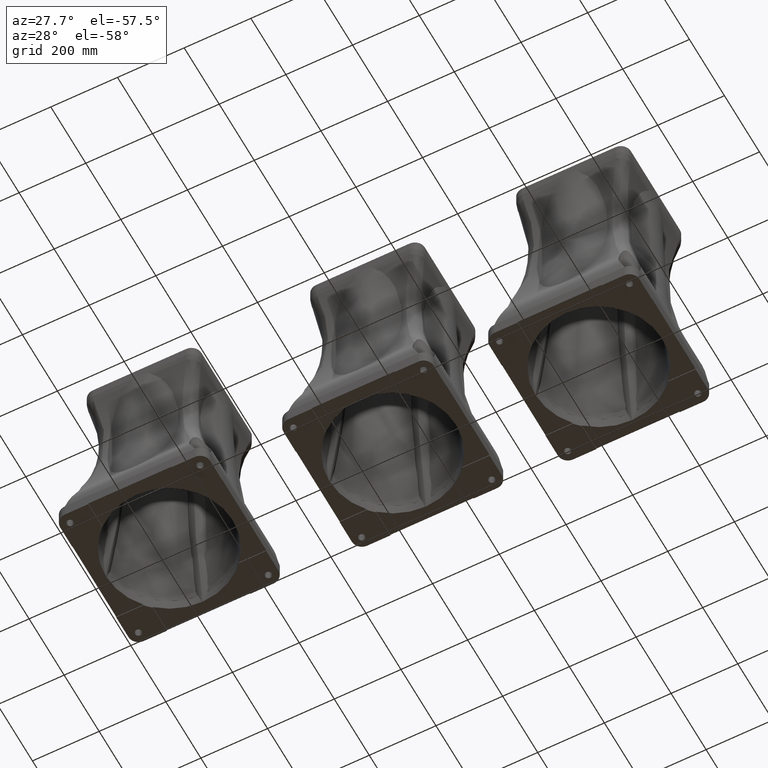
[diagram: clean part render]
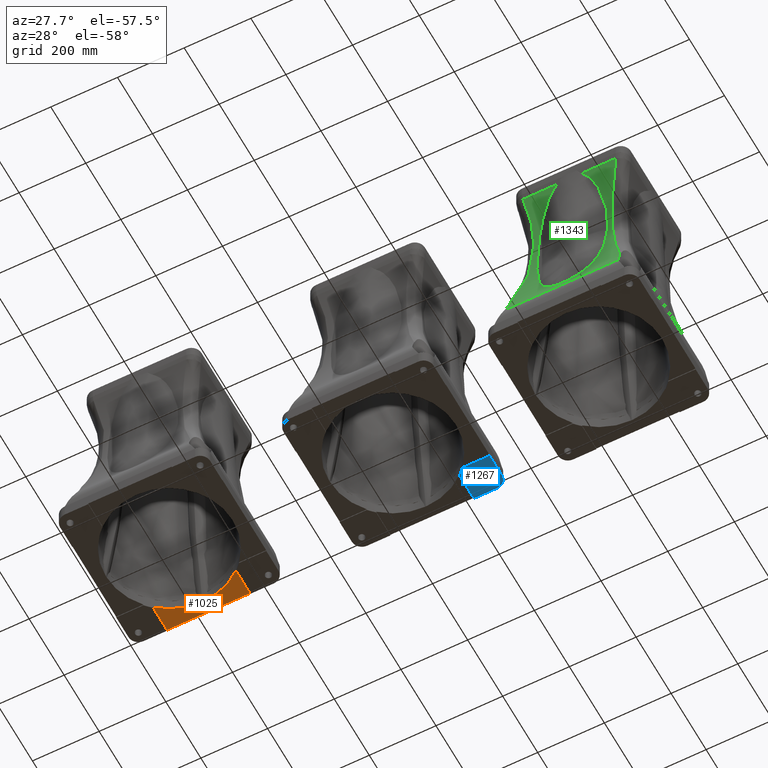
[diagram: same view with three faces highlighted in distinct colors, each labeled with its STEP entity id]
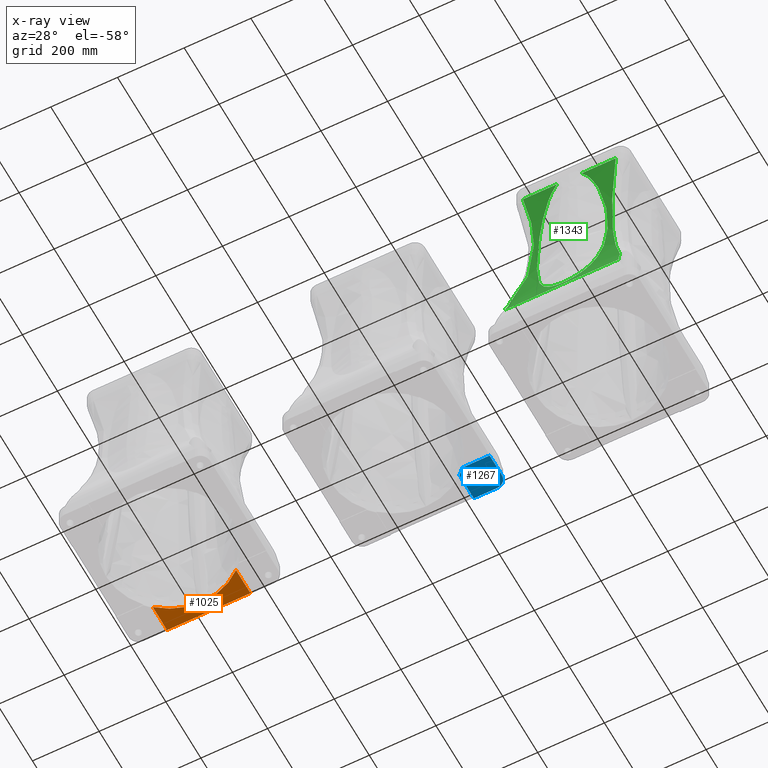
[diagram: x-ray of the same camera — body ghosted, the three highlighted faces saturated]
A machine part, auxiliary view with three faces highlighted in distinct colors.
The next image is the same camera in x-ray (body ghosted, the three faces saturated) — at least one of them is partly hidden behind the body in this view.
Their STEP definitions:

[orange] entity #1025 — the highlighted planar face has unit normal (0, 0, 1).
#1025=ADVANCED_FACE('',(#1686),#1687,.F.);
#1686=FACE_OUTER_BOUND('',#2850,.T.);
#1687=PLANE('',#2851);
#2850=EDGE_LOOP('',(#10504,#10505,#10506,#10507));
#2851=AXIS2_PLACEMENT_3D('',#10508,#10509,#10510);
#10504=ORIENTED_EDGE('',*,*,#14594,.F.);
#10505=ORIENTED_EDGE('',*,*,#14595,.T.);
#10506=ORIENTED_EDGE('',*,*,#14596,.F.);
#10507=ORIENTED_EDGE('',*,*,#14597,.F.);
#10508=CARTESIAN_POINT('',(456.588,-135.555555555555,402.999684630166));
#10509=DIRECTION('',(0.0,-0.0,1.0));
#10510=DIRECTION('',(0.0,1.0,0.0));
#14594=EDGE_CURVE('',#15978,#15979,#15980,.T.);
#14595=EDGE_CURVE('',#15978,#15981,#15982,.T.);
#14596=EDGE_CURVE('',#15983,#15981,#15984,.T.);
#14597=EDGE_CURVE('',#15979,#15983,#15985,.T.);
#15978=VERTEX_POINT('',#18144);
#15979=VERTEX_POINT('',#18145);
#15980=LINE('',#18146,#18147);
#15981=VERTEX_POINT('',#18148);
#15982=CIRCLE('',#18149,190.0);
#15983=VERTEX_POINT('',#18150);
#15984=LINE('',#18151,#18152);
#15985=LINE('',#18153,#18154);
#18144=CARTESIAN_POINT('',(331.588,132.535324656984,402.999684630166));
#18145=CARTESIAN_POINT('',(331.588,214.444444444444,402.999684630166));
#18146=CARTESIAN_POINT('',(331.588,-260.555555555554,402.999684630166));
#18147=VECTOR('',#30380,1.0);
#18148=CARTESIAN_POINT('',(81.5880000000027,132.535324656989,402.999684630166));
#18149=AXIS2_PLACEMENT_3D('',#30381,#30382,#30383);
#18150=CARTESIAN_POINT('',(81.5880000000027,214.444444444444,402.999684630166));
#18151=CARTESIAN_POINT('',(81.5880000000027,239.444444444446,402.999684630166));
#18152=VECTOR('',#30384,1.0);
#18153=CARTESIAN_POINT('',(431.588,214.444444444444,402.999684630166));
#18154=VECTOR('',#30385,1.0);
#30380=DIRECTION('',(0.0,1.0,0.0));
#30381=CARTESIAN_POINT('',(206.588,-10.5555555555554,402.999684630166));
#30382=DIRECTION('',(0.0,0.0,1.0));
#30383=DIRECTION('',(1.0,0.0,0.0));
#30384=DIRECTION('',(0.0,-1.0,0.0));
#30385=DIRECTION('',(-1.0,0.0,0.0));

[blue] entity #1267 — the highlighted planar face has unit normal (0, 0, 1).
#1267=ADVANCED_FACE('',(#2180,#2181),#2182,.F.);
#2180=FACE_BOUND('',#5958,.T.);
#2181=FACE_OUTER_BOUND('',#5959,.T.);
#2182=PLANE('',#5960);
#5958=EDGE_LOOP('',(#12617));
#5959=EDGE_LOOP('',(#12618,#12619,#12620,#12621,#12622,#12623));
#5960=AXIS2_PLACEMENT_3D('',#12624,#12625,#12626);
#12617=ORIENTED_EDGE('',*,*,#15162,.F.);
#12618=ORIENTED_EDGE('',*,*,#15138,.F.);
#12619=ORIENTED_EDGE('',*,*,#15163,.T.);
#12620=ORIENTED_EDGE('',*,*,#15164,.T.);
#12621=ORIENTED_EDGE('',*,*,#15165,.T.);
#12622=ORIENTED_EDGE('',*,*,#15127,.F.);
#12623=ORIENTED_EDGE('',*,*,#15158,.T.);
#12624=CARTESIAN_POINT('',(431.588,-235.555555555555,399.999684630166));
#12625=DIRECTION('',(0.0,-0.0,1.0));
#12626=DIRECTION('',(0.0,1.0,0.0));
#15127=EDGE_CURVE('',#16854,#16856,#16857,.T.);
#15138=EDGE_CURVE('',#16875,#16877,#16878,.T.);
#15158=EDGE_CURVE('',#16854,#16877,#16908,.F.);
#15162=EDGE_CURVE('',#16914,#16914,#16915,.F.);
#15163=EDGE_CURVE('',#16875,#16916,#16917,.T.);
#15164=EDGE_CURVE('',#16916,#16918,#16919,.T.);
#15165=EDGE_CURVE('',#16918,#16856,#16920,.T.);
#16854=VERTEX_POINT('',#24811);
#16856=VERTEX_POINT('',#24814);
#16857=LINE('',#24815,#24816);
#16875=VERTEX_POINT('',#24843);
#16877=VERTEX_POINT('',#24846);
#16878=LINE('',#24847,#24848);
#16908=CIRCLE('',#24886,30.0);
#16914=VERTEX_POINT('',#24893);
#16915=CIRCLE('',#24894,10.0);
#16916=VERTEX_POINT('',#24895);
#16917=LINE('',#24896,#24897);
#16918=VERTEX_POINT('',#24898);
#16919=CIRCLE('',#24899,190.0);
#16920=LINE('',#24900,#24901);
#24811=CARTESIAN_POINT('',(401.588,214.444444444444,399.999684630166));
#24814=CARTESIAN_POINT('',(331.588,214.444444444444,399.999684630166));
#24815=CARTESIAN_POINT('',(431.588,214.444444444444,399.999684630166));
#24816=VECTOR('',#31047,1.0);
#24843=CARTESIAN_POINT('',(431.588,114.444444444445,399.999684630166));
#24846=CARTESIAN_POINT('',(431.588,184.444444444444,399.999684630166));
#24847=CARTESIAN_POINT('',(431.588,-235.555555555555,399.999684630166));
#24848=VECTOR('',#31058,1.0);
#24886=AXIS2_PLACEMENT_3D('',#31100,#31101,#31102);
#24893=CARTESIAN_POINT('',(411.588,184.444444444444,399.999684630166));
#24894=AXIS2_PLACEMENT_3D('',#31110,#31111,#31112);
#24895=CARTESIAN_POINT('',(349.678880212542,114.444444444445,399.999684630166));
#24896=CARTESIAN_POINT('',(456.588,114.444444444445,399.999684630166));
#24897=VECTOR('',#31113,1.0);
#24898=CARTESIAN_POINT('',(331.588,132.535324656984,399.999684630166));
#24899=AXIS2_PLACEMENT_3D('',#31114,#31115,#31116);
#24900=CARTESIAN_POINT('',(331.588,-260.555555555554,399.999684630166));
#24901=VECTOR('',#31117,1.0);
#31047=DIRECTION('',(-1.0,0.0,0.0));
#31058=DIRECTION('',(0.0,1.0,0.0));
#31100=CARTESIAN_POINT('',(401.588,184.444444444444,399.999684630166));
#31101=DIRECTION('',(0.0,-0.0,1.0));
#31102=DIRECTION('',(0.0,1.0,0.0));
#31110=CARTESIAN_POINT('',(401.588,184.444444444444,399.999684630166));
#31111=DIRECTION('',(0.0,0.0,1.0));
#31112=DIRECTION('',(1.0,0.0,0.0));
#31113=DIRECTION('',(-1.0,0.0,0.0));
#31114=CARTESIAN_POINT('',(206.588,-10.5555555555554,399.999684630166));
#31115=DIRECTION('',(0.0,-0.0,1.0));
#31116=DIRECTION('',(0.0,1.0,0.0));
#31117=DIRECTION('',(0.0,1.0,0.0));

[green] entity #1343 — the highlighted face is a SurfaceOfExtrusion surface.
#1343=ADVANCED_FACE('',(#2314),#2315,.F.);
#2314=FACE_OUTER_BOUND('',#7621,.T.);
#2315=SURFACE_OF_LINEAR_EXTRUSION('',#7622,#7623);
#7621=EDGE_LOOP('',(#13095,#13096,#13097,#13098,#13099,#13100,#13101,#13102));
#7622=(B_SPLINE_CURVE(3,(#13104,#13105,#13106,#13107,#13108,#13109,#13110),.UNSPECIFIED.,.T.,.F.)B_SPLINE_CURVE_WITH_KNOTS((4,3,4),(0.0,0.5,1.0),.UNSPECIFIED.)RATIONAL_B_SPLINE_CURVE((1.0,0.333333333333334,0.333333333333334,1.0,0.333333333333334,0.333333333333334,1.0))BOUNDED_CURVE()REPRESENTATION_ITEM('')GEOMETRIC_REPRESENTATION_ITEM()CURVE());
#7623=VECTOR('',#13117,1.0);
#13095=ORIENTED_EDGE('',*,*,#15314,.T.);
#13096=ORIENTED_EDGE('',*,*,#15309,.T.);
#13097=ORIENTED_EDGE('',*,*,#15291,.T.);
#13098=ORIENTED_EDGE('',*,*,#15315,.T.);
#13099=ORIENTED_EDGE('',*,*,#15316,.F.);
#13100=ORIENTED_EDGE('',*,*,#15290,.T.);
#13101=ORIENTED_EDGE('',*,*,#15317,.T.);
#13102=ORIENTED_EDGE('',*,*,#15278,.T.);
#13104=CARTESIAN_POINT('',(456.588,-657.525555555554,1949.3719357305));
#13105=CARTESIAN_POINT('',(456.588,342.474444444446,1949.37193573049));
#13106=CARTESIAN_POINT('',(456.588,342.474444444446,449.854698320493));
#13107=CARTESIAN_POINT('',(456.588,-657.525555555554,449.854698320494));
#13108=CARTESIAN_POINT('',(456.588,-1657.52555555555,449.854698320493));
#13109=CARTESIAN_POINT('',(456.588,-1657.52555555555,1949.37193573049));
#13110=CARTESIAN_POINT('',(456.588,-657.525555555554,1949.3719357305));
#13117=DIRECTION('',(-1.0,0.0,0.0));
#15278=EDGE_CURVE('',#17106,#17104,#17107,.T.);
#15290=EDGE_CURVE('',#17125,#17121,#17128,.T.);
#15291=EDGE_CURVE('',#17129,#17130,#17131,.F.);
#15309=EDGE_CURVE('',#17163,#17129,#17164,.T.);
#15314=EDGE_CURVE('',#17104,#17163,#17171,.F.);
#15315=EDGE_CURVE('',#17130,#17172,#17173,.T.);
#15316=EDGE_CURVE('',#17125,#17172,#17174,.T.);
#15317=EDGE_CURVE('',#17121,#17106,#17175,.F.);
#17104=VERTEX_POINT('',#26222);
#17106=VERTEX_POINT('',#26243);
#17107=B_SPLINE_CURVE_WITH_KNOTS('',3,(#26244,#26245,#26246,#26247,#26248,#26249,#26250,#26251,#26252,#26253,#26254,#26255),.UNSPECIFIED.,.F.,.F.,(4,2,2,2,2,4),(0.0,0.0152437259500245,0.030487451900049,0.0457311778500736,0.0533530408250858,0.0609749038000981),.UNSPECIFIED.);
#17121=VERTEX_POINT('',#26390);
#17125=VERTEX_POINT('',#26430);
#17128=LINE('',#26454,#26455);
#17129=VERTEX_POINT('',#26456);
#17130=VERTEX_POINT('',#26457);
#17131=B_SPLINE_CURVE_WITH_KNOTS('',3,(#26458,#26459,#26460,#26461,#26462,#26463,#26464,#26465,#26466,#26467,#26468,#26469,#26470,#26471,#26472,#26473,#26474,#26475,#26476,#26477,#26478,#26479,#26480,#26481,#26482,#26483,#26484,#26485,#26486,#26487,#26488,#26489,#26490,#26491,#26492,#26493,#26494,#26495,#26496,#26497,#26498,#26499,#26500,#26501,#26502,#26503,#26504,#26505,#26506,#26507,#26508,#26509,#26510,#26511,#26512,#26513),.UNSPECIFIED.,.F.,.F.,(4,1,1,1,1,1,1,1,1,1,1,1,1,1,1,1,1,1,1,1,1,1,1,1,1,1,1,1,1,1,1,1,1,1,1,1,1,1,1,1,1,1,1,1,1,1,1,1,1,1,1,1,1,4),(0.0,0.00523102211654687,0.0104602604136304,0.0156876697564421,0.0209132048943216,0.0261368204702712,0.0313584710304713,0.0365781110338017,0.0417956948613576,0.0470111768259678,0.0522245111817028,0.0574356521333832,0.0626445538460732,0.0678511704545764,0.0730554560729134,0.0782573648037842,0.0834568507480314,0.0886538680140749,0.0938483707273342,0.0990403130396424,0.104229649138623,0.109416333257066,0.114600319682268,0.119781562765355,0.124960016930583,0.156298230668162,0.187597029291353,0.218847207275776,0.250039541950672,0.312647426859889,0.375179995296705,0.437737504276527,0.500333204479541,0.562811572318788,0.625443109023293,0.687810552638738,0.750454990188394,0.781509877122791,0.812680105210586,0.84395519688486,0.87532470376048,0.884827463859977,0.89434609209326,0.903880245089617,0.913429578906459,0.922993749271424,0.932572411825703,0.942165222368428,0.95177183710199,0.961391912878136,0.971025107444701,0.980671079692813,0.990329489904425,1.0),.UNSPECIFIED.);
#17163=VERTEX_POINT('',#27002);
#17164=B_SPLINE_CURVE_WITH_KNOTS('',3,(#27003,#27004,#27005,#27006,#27007,#27008,#27009,#27010,#27011,#27012,#27013,#27014),.UNSPECIFIED.,.F.,.F.,(4,2,2,2,2,4),(0.0,0.00762186297501714,0.0152437259500343,0.0304874519000689,0.0457311778501035,0.0609749038001381),.UNSPECIFIED.);
#17171=LINE('',#27069,#27070);
#17172=VERTEX_POINT('',#27071);
#17173=LINE('',#27072,#27073);
#17174=B_SPLINE_CURVE_WITH_KNOTS('',3,(#27074,#27075,#27076,#27077,#27078,#27079,#27080,#27081,#27082,#27083,#27084,#27085,#27086,#27087,#27088,#27089,#27090,#27091,#27092,#27093,#27094,#27095,#27096,#27097,#27098,#27099,#27100,#27101,#27102,#27103,#27104,#27105,#27106,#27107,#27108,#27109,#27110,#27111,#27112,#27113,#27114,#27115,#27116,#27117,#27118,#27119,#27120,#27121,#27122,#27123,#27124,#27125,#27126,#27127,#27128,#27129,#27130,#27131,#27132,#27133,#27134,#27135,#27136,#27137,#27138,#27139,#27140,#27141,#27142,#27143,#27144,#27145,#27146,#27147,#27148,#27149,#27150,#27151,#27152,#27153,#27154,#27155,#27156,#27157,#27158,#27159,#27160,#27161,#27162,#27163,#27164,#27165,#27166,#27167,#27168,#27169,#27170,#27171,#27172,#27173,#27174,#27175,#27176,#27177,#27178,#27179,#27180,#27181,#27182,#27183,#27184,#27185,#27186,#27187,#27188,#27189,#27190,#27191,#27192,#27193,#27194,#27195,#27196,#27197,#27198,#27199,#27200,#27201,#27202,#27203,#27204,#27205,#27206,#27207,#27208,#27209,#27210,#27211,#27212,#27213,#27214,#27215,#27216,#27217,#27218,#27219,#27220,#27221,#27222,#27223,#27224,#27225,#27226,#27227,#27228,#27229,#27230,#27231,#27232,#27233,#27234,#27235,#27236,#27237,#27238,#27239,#27240,#27241,#27242,#27243,#27244,#27245,#27246,#27247),.UNSPECIFIED.,.F.,.F.,(4,2,2,2,2,2,2,2,2,2,2,2,2,2,2,2,2,2,2,2,2,2,2,2,2,2,2,2,2,2,2,2,2,2,2,2,2,2,2,2,2,2,2,2,2,2,2,2,2,2,2,2,2,2,2,2,2,2,2,2,2,2,2,2,2,2,2,2,2,2,2,2,2,2,2,2,2,2,2,2,2,2,2,2,2,2,4),(0.0,0.00981266546631581,0.0196253309326316,0.0294379963989474,0.0392506618652632,0.049063327331579,0.0588759927978948,0.0785013237305258,0.0981266546631568,0.117751985595788,0.137377316528419,0.147189981994734,0.15700264746105,0.196253309326311,0.235503971191572,0.274754633056834,0.314005294922095,0.353255956787357,0.372881287719987,0.382693953186302,0.392506618652618,0.43175728051788,0.451382611450512,0.471007942383143,0.490633273315774,0.500445938782089,0.510258604248405,0.529883935181036,0.539696600647351,0.549509266113667,0.559321931579982,0.569134597046298,0.574040929779455,0.576494096146034,0.578947262512613,0.588759927978929,0.593666260712088,0.596119427078667,0.598572593445246,0.608385258911562,0.618197924377878,0.620651090744457,0.623104257111036,0.628010589844194,0.637823255310511,0.64027642167709,0.642729588043669,0.647635920776827,0.652542253509985,0.657448586243143,0.667261251709459,0.677073917175775,0.679527083542354,0.681980249908933,0.686886582642091,0.696699248108408,0.706511913574724,0.71632457904104,0.726137244507356,0.745762575439989,0.765387906372621,0.785013237305254,0.804638568237886,0.814451233704202,0.824263899170519,0.863514561035783,0.902765222901047,0.942015884766312,0.981266546631576,1.02051720849684,1.03032987396316,1.04014253942947,1.05976787036211,1.09901853222737,1.11864386316,1.12845652862632,1.13826919409264,1.15789452502527,1.1775198559579,1.19714518689053,1.20695785235685,1.21186418509001,1.21677051782317,1.22658318328948,1.2363958487558,1.24620851422211,1.25602117968843),.UNSPECIFIED.);
#17175=B_SPLINE_CURVE_WITH_KNOTS('',3,(#27248,#27249,#27250,#27251,#27252,#27253,#27254,#27255,#27256,#27257,#27258,#27259,#27260,#27261,#27262,#27263,#27264,#27265,#27266,#27267,#27268,#27269,#27270,#27271,#27272,#27273,#27274,#27275,#27276,#27277,#27278,#27279,#27280,#27281,#27282,#27283,#27284,#27285,#27286,#27287,#27288,#27289,#27290,#27291,#27292,#27293,#27294,#27295,#27296,#27297,#27298,#27299,#27300,#27301,#27302,#27303),.UNSPECIFIED.,.F.,.F.,(4,1,1,1,1,1,1,1,1,1,1,1,1,1,1,1,1,1,1,1,1,1,1,1,1,1,1,1,1,1,1,1,1,1,1,1,1,1,1,1,1,1,1,1,1,1,1,1,1,1,1,1,1,4),(0.0,0.00523936613606617,0.0104752539557815,0.0157076100652907,0.0209363809079946,0.0261615127760756,0.0313829518220126,0.0366006440701095,0.0418145354280138,0.0470245716982353,0.0522306985896516,0.0574328617290117,0.0626310066724227,0.0678250789168309,0.073015023911477,0.0782007870693416,0.0833823137785727,0.0885595494138862,0.0937324393479444,0.0989009289627101,0.104064963660777,0.109224488876664,0.114379450088084,0.119529792827178,0.124675462691712,0.156042078829177,0.187316179849251,0.218487359592672,0.249545176016103,0.312185255357284,0.37455705652212,0.437183308709037,0.499666960390385,0.56225691565083,0.624820169362305,0.687346993381361,0.749960622502774,0.7811489808421,0.812397850849087,0.843697986267523,0.875040147907652,0.884601834542468,0.894173014178516,0.903753399116521,0.913342700949588,0.922940630763972,0.932546899340704,0.942161217357981,0.951783295594199,0.961412845131525,0.971049577559909,0.980693205181418,0.990343441214775,1.0),.UNSPECIFIED.);
#26222=CARTESIAN_POINT('',(36.3098521757585,-222.550555555555,829.877399005009));
#26243=CARTESIAN_POINT('',(41.4741390020655,-202.944292346059,887.382733348588));
#26244=CARTESIAN_POINT('',(41.4741390020657,-202.944292346059,887.382733348588));
#26245=CARTESIAN_POINT('',(41.604657327608,-204.438086156384,882.492499011677));
#26246=CARTESIAN_POINT('',(41.626143155612,-205.967625848452,877.624243822809));
#26247=CARTESIAN_POINT('',(41.4194241191133,-209.097586214501,867.934323654007));
#26248=CARTESIAN_POINT('',(41.1915957616572,-210.698021599222,863.112629877306));
#26249=CARTESIAN_POINT('',(40.4331061964119,-213.968503169061,853.520171918658));
#26250=CARTESIAN_POINT('',(39.9034442926619,-215.638586077983,848.749330514726));
#26251=CARTESIAN_POINT('',(38.8116893315842,-218.193938034306,841.636889077143));
#26252=CARTESIAN_POINT('',(38.3978471172652,-219.054080147057,839.273408374781));
#26253=CARTESIAN_POINT('',(37.4506268001814,-220.790469522921,834.562672933123));
#26254=CARTESIAN_POINT('',(36.9174411373255,-221.666723576063,832.215403226729));
#26255=CARTESIAN_POINT('',(36.309852175759,-222.550555555555,829.877399005009));
#26390=CARTESIAN_POINT('',(67.4254545454548,-178.461919191919,1414.30120777476));
#26430=CARTESIAN_POINT('',(169.479957194499,-178.461919191919,1414.30120777476));
#26454=CARTESIAN_POINT('',(456.588,-178.461919191919,1414.30120777476));
#26455=VECTOR('',#31148,1.0);
#26456=CARTESIAN_POINT('',(371.701860997938,-202.944292346048,887.382733348627));
#26457=CARTESIAN_POINT('',(345.750545454546,-178.461919191919,1414.30120777476));
#26458=CARTESIAN_POINT('',(345.750545454547,-178.461919191919,1414.30120777477));
#26459=CARTESIAN_POINT('',(345.560553447874,-178.28267983054,1413.39829171622));
#26460=CARTESIAN_POINT('',(345.180634223288,-177.924262229806,1411.59276750057));
#26461=CARTESIAN_POINT('',(344.620064974121,-177.395401101482,1408.88131642275));
#26462=CARTESIAN_POINT('',(344.066432770229,-176.873076359897,1406.16820328003));
#26463=CARTESIAN_POINT('',(343.520398592476,-176.35791334179,1403.45322874734));
#26464=CARTESIAN_POINT('',(342.981785424295,-175.849748418364,1400.73652770187));
#26465=CARTESIAN_POINT('',(342.450640670494,-175.348628816747,1398.01814550619));
#26466=CARTESIAN_POINT('',(341.926951635148,-174.854544862325,1395.29815147574));
#26467=CARTESIAN_POINT('',(341.410721717319,-174.36750168544,1392.57660848554));
#26468=CARTESIAN_POINT('',(340.901950005923,-173.887500019016,1389.85358110307));
#26469=CARTESIAN_POINT('',(340.40063674413,-173.414541341507,1387.12913340392));
#26470=CARTESIAN_POINT('',(339.906781866041,-172.948626500355,1384.40332955043));
#26471=CARTESIAN_POINT('',(339.420385388553,-172.489756081356,1381.67623363034));
#26472=CARTESIAN_POINT('',(338.94144730642,-172.037930310544,1378.94790969369));
#26473=CARTESIAN_POINT('',(338.469967620355,-171.59314908131,1376.21842173667));
#26474=CARTESIAN_POINT('',(338.0059463295,-171.155411948019,1373.48783369955));
#26475=CARTESIAN_POINT('',(337.549383433474,-170.724718128705,1370.75620946138));
#26476=CARTESIAN_POINT('',(337.100278931691,-170.301066505176,1368.02361283378));
#26477=CARTESIAN_POINT('',(336.658632824044,-169.884455624615,1365.29010756148));
#26478=CARTESIAN_POINT('',(336.224445108863,-169.474883698025,1362.55575729718));
#26479=CARTESIAN_POINT('',(335.797715790387,-169.072348610024,1359.82062567232));
#26480=CARTESIAN_POINT('',(335.378444850929,-168.676847886624,1357.08477601025));
#26481=CARTESIAN_POINT('',(334.966632354683,-168.288378819865,1354.34827237304));
#26482=CARTESIAN_POINT('',(334.562278060609,-167.906938007667,1351.61117563529));
#26483=CARTESIAN_POINT('',(333.49698274076,-166.901981330606,1344.26321278518));
#26484=CARTESIAN_POINT('',(331.87593815481,-165.372516936479,1332.28218767224));
#26485=CARTESIAN_POINT('',(329.896881480438,-163.50530560353,1315.63164569248));
#26486=CARTESIAN_POINT('',(328.185799507356,-161.891205074589,1298.95136739639));
#26487=CARTESIAN_POINT('',(326.257154542529,-160.072097592659,1276.63718969965));
#26488=CARTESIAN_POINT('',(324.513589754883,-158.426520619611,1248.63921130206));
#26489=CARTESIAN_POINT('',(323.489641039964,-157.461328683758,1214.93160983209));
#26490=CARTESIAN_POINT('',(323.539551352126,-157.507631960329,1181.19656873129));
#26491=CARTESIAN_POINT('',(324.660114507174,-158.565546506645,1147.50648621361));
#26492=CARTESIAN_POINT('',(326.853051507175,-160.633567770352,1113.90283668364));
#26493=CARTESIAN_POINT('',(330.107520225913,-163.704618362343,1080.50352977491));
#26494=CARTESIAN_POINT('',(334.427178804257,-167.778936766857,1047.30322650398));
#26495=CARTESIAN_POINT('',(338.895258115499,-171.994815526632,1019.93138596274));
#26496=CARTESIAN_POINT('',(342.992015319766,-175.85937249115,998.211037072565));
#26497=CARTESIAN_POINT('',(346.317607192633,-178.996510008722,982.042983387574));
#26498=CARTESIAN_POINT('',(349.912418005052,-182.387988384853,965.925261434618));
#26499=CARTESIAN_POINT('',(352.875131602156,-185.183245194739,953.616736482106));
#26500=CARTESIAN_POINT('',(355.034334079669,-187.220201258795,945.062612999004));
#26501=CARTESIAN_POINT('',(356.281595375062,-188.396798841291,940.226544727674));
#26502=CARTESIAN_POINT('',(357.554567134544,-189.597634155885,935.394254340278));
#26503=CARTESIAN_POINT('',(358.853252687716,-190.822728188023,930.566185200189));
#26504=CARTESIAN_POINT('',(360.177651360639,-192.072095847736,925.742790217529));
#26505=CARTESIAN_POINT('',(361.527762626593,-193.345746907053,920.924520834709));
#26506=CARTESIAN_POINT('',(362.903589397172,-194.643689854982,916.111832510913));
#26507=CARTESIAN_POINT('',(364.305120658862,-195.965915321833,911.305173008585));
#26508=CARTESIAN_POINT('',(365.732397770501,-197.31245848443,906.505023038087));
#26509=CARTESIAN_POINT('',(367.18526615645,-198.683165413723,901.71174429313));
#26510=CARTESIAN_POINT('',(368.664303981686,-200.078566777412,896.92614691458));
#26511=CARTESIAN_POINT('',(370.167349411914,-201.496610579941,892.147366897765));
#26512=CARTESIAN_POINT('',(371.190145370162,-202.461530064569,888.971608340119));
#26513=CARTESIAN_POINT('',(371.701863483888,-202.944291826178,887.382735050523));
#27002=CARTESIAN_POINT('',(376.866147824244,-222.550555555555,829.877399005009));
#27003=CARTESIAN_POINT('',(376.866147824244,-222.550555555555,829.877399005009));
#27004=CARTESIAN_POINT('',(376.258558862677,-221.666723576063,832.215403226731));
#27005=CARTESIAN_POINT('',(375.725373199819,-220.79046952292,834.562672933125));
#27006=CARTESIAN_POINT('',(374.778152882735,-219.054080147055,839.273408374787));
#27007=CARTESIAN_POINT('',(374.364310668416,-218.193938034304,841.636889077151));
#27008=CARTESIAN_POINT('',(373.272555707338,-215.638586077979,848.749330514738));
#27009=CARTESIAN_POINT('',(372.742893803588,-213.968503169056,853.520171918673));
#27010=CARTESIAN_POINT('',(371.984404238343,-210.698021599215,863.112629877328));
#27011=CARTESIAN_POINT('',(371.756575880887,-209.097586214493,867.934323654033));
#27012=CARTESIAN_POINT('',(371.549856844389,-205.967625848442,877.624243822841));
#27013=CARTESIAN_POINT('',(371.571342672395,-204.438086156373,882.492499011713));
#27014=CARTESIAN_POINT('',(371.701860997938,-202.944292346047,887.382733348627));
#27069=CARTESIAN_POINT('',(456.588,-222.550555555555,829.877399005009));
#27070=VECTOR('',#31155,1.0);
#27071=CARTESIAN_POINT('',(243.696042805501,-178.461919191919,1414.30120777476));
#27072=CARTESIAN_POINT('',(456.588,-178.461919191919,1414.30120777476));
#27073=VECTOR('',#31156,1.0);
#27074=CARTESIAN_POINT('',(169.479957194499,-178.461919191919,1414.30120777476));
#27075=CARTESIAN_POINT('',(167.155718059909,-177.999099234203,1411.97900221349));
#27076=CARTESIAN_POINT('',(164.983265945044,-177.523572967767,1409.55176446691));
#27077=CARTESIAN_POINT('',(160.870804825219,-176.56039760936,1404.53510038905));
#27078=CARTESIAN_POINT('',(158.931338106968,-176.072661955178,1401.94530635804));
#27079=CARTESIAN_POINT('',(155.24038268551,-175.093890333516,1396.63336325561));
#27080=CARTESIAN_POINT('',(153.48914665094,-174.602813090807,1393.9110430341));
#27081=CARTESIAN_POINT('',(150.143781477796,-173.623815450227,1388.35469946941));
#27082=CARTESIAN_POINT('',(148.549784193252,-173.135872989895,1385.52058690822));
#27083=CARTESIAN_POINT('',(145.496373156512,-172.168105965656,1379.75568034491));
#27084=CARTESIAN_POINT('',(144.04712410661,-171.69149247805,1376.84397663101));
#27085=CARTESIAN_POINT('',(141.283039910154,-170.756811477422,1370.98019836758));
#27086=CARTESIAN_POINT('',(139.967412895781,-170.298454882439,1368.02641889069));
#27087=CARTESIAN_POINT('',(136.191034544224,-168.952936545421,1359.10811679844));
#27088=CARTESIAN_POINT('',(133.899408619977,-168.095441273917,1353.08704888707));
#27089=CARTESIAN_POINT('',(129.663871637652,-166.469309736702,1340.92536752976));
#27090=CARTESIAN_POINT('',(127.72072543602,-165.700609957229,1334.78452170629));
#27091=CARTESIAN_POINT('',(124.116755562125,-164.258668007122,1322.40301394548));
#27092=CARTESIAN_POINT('',(122.456289995397,-163.585394368997,1316.16224341341));
#27093=CARTESIAN_POINT('',(119.372633427197,-162.339237643338,1303.59443185633));
#27094=CARTESIAN_POINT('',(117.949629550859,-161.766336925826,1297.26733422618));
#27095=CARTESIAN_POINT('',(115.968965029043,-160.985239055721,1287.71919827247));
#27096=CARTESIAN_POINT('',(115.334469288724,-160.737909061417,1284.52687860881));
#27097=CARTESIAN_POINT('',(114.113744720873,-160.26975871016,1278.12397100935));
#27098=CARTESIAN_POINT('',(113.527467746234,-160.048929532159,1274.91281618107));
#27099=CARTESIAN_POINT('',(110.718907475083,-159.015269465394,1258.8671964215));
#27100=CARTESIAN_POINT('',(108.852365369887,-158.410447981334,1246.0196543134));
#27101=CARTESIAN_POINT('',(105.725837796838,-157.642425433883,1220.30968215001));
#27102=CARTESIAN_POINT('',(104.467164646149,-157.479204013284,1207.44718939607));
#27103=CARTESIAN_POINT('',(102.483303316015,-157.594450333982,1181.71077382298));
#27104=CARTESIAN_POINT('',(101.758599708468,-157.872902825607,1168.83682761083));
#27105=CARTESIAN_POINT('',(100.820673731232,-158.874791392716,1143.07864865845));
#27106=CARTESIAN_POINT('',(100.6075024285,-159.598209576195,1130.19441294414));
#27107=CARTESIAN_POINT('',(100.714791922441,-161.49702018837,1104.41482582969));
#27108=CARTESIAN_POINT('',(101.034914225258,-162.672386338305,1091.51948961672));
#27109=CARTESIAN_POINT('',(101.9682381249,-164.782910640751,1072.16591138161));
#27110=CARTESIAN_POINT('',(102.355276839125,-165.544367471658,1065.71293818474));
#27111=CARTESIAN_POINT('',(103.060845811954,-166.774905801281,1056.0303267443));
#27112=CARTESIAN_POINT('',(103.317107000226,-167.200125872622,1052.80000204042));
#27113=CARTESIAN_POINT('',(103.872639212396,-168.078648081913,1046.3501626233));
#27114=CARTESIAN_POINT('',(104.171776437061,-168.531770211951,1043.13179109131));
#27115=CARTESIAN_POINT('',(105.779379861959,-170.866267980613,1027.07353076155));
#27116=CARTESIAN_POINT('',(107.419609236518,-172.954458465506,1014.3337260476));
#27117=CARTESIAN_POINT('',(110.551367497428,-176.408207359908,995.408349224464));
#27118=CARTESIAN_POINT('',(111.707928895048,-177.613007905975,989.130743664384));
#27119=CARTESIAN_POINT('',(114.28230862263,-180.127517010023,976.643471765517));
#27120=CARTESIAN_POINT('',(115.699940623519,-181.437239910682,970.43377370356));
#27121=CARTESIAN_POINT('',(118.845554460402,-184.158609938248,958.090824243763));
#27122=CARTESIAN_POINT('',(120.573188402729,-185.570282813567,951.957513422412));
#27123=CARTESIAN_POINT('',(123.449931905384,-187.760961724551,942.823970116727));
#27124=CARTESIAN_POINT('',(124.457256897568,-188.503781189186,939.789056349513));
#27125=CARTESIAN_POINT('',(126.568920328844,-190.005866237537,933.771577535248));
#27126=CARTESIAN_POINT('',(127.674197987675,-190.765892128911,930.78577746114));
#27127=CARTESIAN_POINT('',(131.155207194039,-193.069873905205,921.90339829465));
#27128=CARTESIAN_POINT('',(133.694162023906,-194.638044841897,916.081109662284));
#27129=CARTESIAN_POINT('',(137.924529771681,-197.02202952514,907.531585224075));
#27130=CARTESIAN_POINT('',(139.40777348016,-197.823026114885,904.708824891893));
#27131=CARTESIAN_POINT('',(142.515700405529,-199.420084600753,899.172688436826));
#27132=CARTESIAN_POINT('',(144.142046464351,-200.2172208099,896.45534878396));
#27133=CARTESIAN_POINT('',(147.560542882846,-201.802262687854,891.135046857385));
#27134=CARTESIAN_POINT('',(149.352592174683,-202.590192961114,888.532020597699));
#27135=CARTESIAN_POINT('',(153.13044837874,-204.148593022471,883.45761217782));
#27136=CARTESIAN_POINT('',(155.116071487021,-204.919106788079,880.986113419244));
#27137=CARTESIAN_POINT('',(158.269120280432,-206.053511183341,877.395801456579));
#27138=CARTESIAN_POINT('',(159.349341443006,-206.428059292085,876.218584878113));
#27139=CARTESIAN_POINT('',(161.018404095796,-206.983156658391,874.48516407077));
#27140=CARTESIAN_POINT('',(161.583223843155,-207.167162993868,873.912466930781));
#27141=CARTESIAN_POINT('',(162.724822251946,-207.531028201222,872.783567249436));
#27142=CARTESIAN_POINT('',(163.302170729491,-207.71108137704,872.226755659507));
#27143=CARTESIAN_POINT('',(166.222956474499,-208.601266465904,869.482299056123));
#27144=CARTESIAN_POINT('',(168.667905411232,-209.281412052309,867.412762729753));
#27145=CARTESIAN_POINT('',(172.529375046604,-210.237729783556,864.532064175929));
#27146=CARTESIAN_POINT('',(173.848989585775,-210.545803671888,863.609230437865));
#27147=CARTESIAN_POINT('',(175.882473821448,-210.989293231065,862.287008359676));
#27148=CARTESIAN_POINT('',(176.569324284443,-211.134014658147,861.856619252004));
#27149=CARTESIAN_POINT('',(177.962134381735,-211.416743535869,861.017722477743));
#27150=CARTESIAN_POINT('',(178.667997837146,-211.554702182183,860.609363914103));
#27151=CARTESIAN_POINT('',(182.218664869816,-212.221118238047,858.640950901585));
#27152=CARTESIAN_POINT('',(185.148998924395,-212.684242019519,857.286650907923));
#27153=CARTESIAN_POINT('',(191.212319789197,-213.444972733656,855.072920203618));
#27154=CARTESIAN_POINT('',(194.345076308977,-213.742750539977,854.212921241062));
#27155=CARTESIAN_POINT('',(198.409824955953,-213.989997332303,853.500115474025));
#27156=CARTESIAN_POINT('',(199.230653779248,-214.033126539372,853.375885985471));
#27157=CARTESIAN_POINT('',(200.865572673702,-214.105382806449,853.1678565404));
#27158=CARTESIAN_POINT('',(201.682379888753,-214.134692363021,853.083530239433));
#27159=CARTESIAN_POINT('',(204.130863312048,-214.202308234812,852.889041515441));
#27160=CARTESIAN_POINT('',(205.760602714924,-214.220308948816,852.837323874023));
#27161=CARTESIAN_POINT('',(210.64216748184,-214.193956453107,852.913080174014));
#27162=CARTESIAN_POINT('',(213.886360940289,-214.069354391518,853.270771866089));
#27163=CARTESIAN_POINT('',(217.928859019764,-213.781061515774,854.102809558456));
#27164=CARTESIAN_POINT('',(218.735493488039,-213.716813614161,854.288386798181));
#27165=CARTESIAN_POINT('',(220.329928682243,-213.576833417575,854.693205493472));
#27166=CARTESIAN_POINT('',(221.119905988246,-213.500953082258,854.912874163783));
#27167=CARTESIAN_POINT('',(223.469002586005,-213.256482966253,855.621588692933));
#27168=CARTESIAN_POINT('',(225.007313508266,-213.071083318423,856.160277905896));
#27169=CARTESIAN_POINT('',(228.032409344353,-212.659402605057,857.360838728286));
#27170=CARTESIAN_POINT('',(229.519187275964,-212.43311642878,858.022727176999));
#27171=CARTESIAN_POINT('',(232.444400434318,-211.943052183602,859.462372210069));
#27172=CARTESIAN_POINT('',(233.88648586095,-211.678412523399,860.242706215628));
#27173=CARTESIAN_POINT('',(238.083310097716,-210.845564528439,862.710476422578));
#27174=CARTESIAN_POINT('',(240.729249494943,-210.235928629256,864.532004580434));
#27175=CARTESIAN_POINT('',(245.775038968724,-208.935810200589,868.463069121894));
#27176=CARTESIAN_POINT('',(248.174507538961,-208.245175156102,870.573043046903));
#27177=CARTESIAN_POINT('',(251.043481594641,-207.343571788561,873.364565621936));
#27178=CARTESIAN_POINT('',(251.61072442536,-207.161321369228,873.930611535821));
#27179=CARTESIAN_POINT('',(252.732581960386,-206.793219643745,875.077662955337));
#27180=CARTESIAN_POINT('',(253.28779656283,-206.607158118139,875.65933047907));
#27181=CARTESIAN_POINT('',(254.928263381798,-206.046321322094,877.418553585626));
#27182=CARTESIAN_POINT('',(255.989840173126,-205.668461477838,878.611663705062));
#27183=CARTESIAN_POINT('',(259.088076953642,-204.525490720044,882.246125202929));
#27184=CARTESIAN_POINT('',(261.038646407214,-203.751084529667,884.742366388682));
#27185=CARTESIAN_POINT('',(264.748891478549,-202.187819091704,889.858397456856));
#27186=CARTESIAN_POINT('',(266.50838743594,-201.398918917041,892.478295461125));
#27187=CARTESIAN_POINT('',(269.863991682812,-199.814327651907,897.825503370861));
#27188=CARTESIAN_POINT('',(271.460000874209,-199.018613591152,900.552872796731));
#27189=CARTESIAN_POINT('',(274.509283671996,-197.426372076447,906.102974840115));
#27190=CARTESIAN_POINT('',(275.963465515622,-196.629276560852,908.927743699159));
#27191=CARTESIAN_POINT('',(280.12989275302,-194.247471661306,917.518588127651));
#27192=CARTESIAN_POINT('',(282.619109442335,-192.689444939022,923.339094930771));
#27193=CARTESIAN_POINT('',(287.158583921177,-189.649475601246,935.12916892486));
#27194=CARTESIAN_POINT('',(289.207740584473,-188.167409373244,941.099037330535));
#27195=CARTESIAN_POINT('',(292.952218160527,-185.289711522365,953.164732663654));
#27196=CARTESIAN_POINT('',(294.647043256376,-183.894022024464,959.260694710553));
#27197=CARTESIAN_POINT('',(297.741498476215,-181.196362325309,971.56269827534));
#27198=CARTESIAN_POINT('',(299.140876036186,-179.89436130288,977.768808311833));
#27199=CARTESIAN_POINT('',(301.050253643352,-178.015722073844,987.151978018654));
#27200=CARTESIAN_POINT('',(301.654990499834,-177.401890743981,990.292064809256));
#27201=CARTESIAN_POINT('',(302.805270068409,-176.199559146901,996.595823657296));
#27202=CARTESIAN_POINT('',(303.351028523897,-175.61078296945,999.761162968188));
#27203=CARTESIAN_POINT('',(305.931901500183,-172.741947003782,1015.58527154059));
#27204=CARTESIAN_POINT('',(307.537166618056,-170.67814157188,1028.28067037664));
#27205=CARTESIAN_POINT('',(310.044349412896,-167.0039420748,1053.73591621516));
#27206=CARTESIAN_POINT('',(310.944452426279,-165.393533262639,1066.49582025127));
#27207=CARTESIAN_POINT('',(312.157238077358,-162.619843251835,1092.07576658701));
#27208=CARTESIAN_POINT('',(312.469201617926,-161.456555693874,1104.89583143984));
#27209=CARTESIAN_POINT('',(312.563959709827,-159.57399364911,1130.59393771565));
#27210=CARTESIAN_POINT('',(312.346544427085,-158.85471286158,1143.47198530977));
#27211=CARTESIAN_POINT('',(311.395332479325,-157.860382693263,1169.28566571431));
#27212=CARTESIAN_POINT('',(310.661699325862,-157.585323151646,1182.22129232606));
#27213=CARTESIAN_POINT('',(309.401754064732,-157.521508290084,1198.42768335402));
#27214=CARTESIAN_POINT('',(309.13250853031,-157.522775092868,1201.67037787262));
#27215=CARTESIAN_POINT('',(308.55977421492,-157.553272373114,1208.14587280608));
#27216=CARTESIAN_POINT('',(308.256160681598,-157.582492561632,1211.38034295236));
#27217=CARTESIAN_POINT('',(307.292239311131,-157.711830918043,1221.07372938078));
#27218=CARTESIAN_POINT('',(306.578975148259,-157.853623635955,1227.52264066407));
#27219=CARTESIAN_POINT('',(304.212335227544,-158.443954036981,1246.82716112642));
#27220=CARTESIAN_POINT('',(302.334984652624,-159.057450169888,1259.64099192106));
#27221=CARTESIAN_POINT('',(298.967428607399,-160.301096688535,1278.76279497186));
#27222=CARTESIAN_POINT('',(297.752360413578,-160.769549391709,1285.12014349829));
#27223=CARTESIAN_POINT('',(295.770316674614,-161.552186465819,1294.62820601701));
#27224=CARTESIAN_POINT('',(295.082995491302,-161.826390624602,1297.79289014578));
#27225=CARTESIAN_POINT('',(293.6506748653,-162.401277362477,1304.11225997771));
#27226=CARTESIAN_POINT('',(292.905145481516,-162.702176986705,1307.26906878855));
#27227=CARTESIAN_POINT('',(290.578781292531,-163.642452790749,1316.70509577138));
#27228=CARTESIAN_POINT('',(288.909232122717,-164.319218443592,1322.948663637));
#27229=CARTESIAN_POINT('',(285.287795083561,-165.767039005524,1335.32684085321));
#27230=CARTESIAN_POINT('',(283.336252397228,-166.538127111944,1341.46156420317));
#27231=CARTESIAN_POINT('',(279.085846262463,-168.167262709628,1353.60073134627));
#27232=CARTESIAN_POINT('',(276.787715248052,-169.02537665448,1359.60541754732));
#27233=CARTESIAN_POINT('',(273.004798866803,-170.369849476287,1368.4899804477));
#27234=CARTESIAN_POINT('',(271.687540265711,-170.827526887546,1371.43098011988));
#27235=CARTESIAN_POINT('',(269.613254389846,-171.526921446891,1375.8070920495));
#27236=CARTESIAN_POINT('',(268.904648851276,-171.762434057421,1377.26132048894));
#27237=CARTESIAN_POINT('',(267.456555184741,-172.235876818469,1380.14740723102));
#27238=CARTESIAN_POINT('',(266.716933978674,-172.473860452471,1381.57964311891));
#27239=CARTESIAN_POINT('',(264.447893749097,-173.190849827775,1385.84171769029));
#27240=CARTESIAN_POINT('',(262.868518530238,-173.672932321416,1388.63706608708));
#27241=CARTESIAN_POINT('',(259.553531573224,-174.64050395681,1394.12101895705));
#27242=CARTESIAN_POINT('',(257.818054091279,-175.12601466367,1396.80971073006));
#27243=CARTESIAN_POINT('',(254.159565456757,-176.094225084991,1402.06021460589));
#27244=CARTESIAN_POINT('',(252.23681260095,-176.57696532568,1404.62219483974));
#27245=CARTESIAN_POINT('',(248.158333324023,-177.53106393925,1409.58995833576));
#27246=CARTESIAN_POINT('',(246.003164361953,-178.00250781496,1411.99610481475));
#27247=CARTESIAN_POINT('',(243.696042805501,-178.461919191919,1414.30120777476));
#27248=CARTESIAN_POINT('',(41.4741365163294,-202.944291826228,887.382735050359));
#27249=CARTESIAN_POINT('',(41.7519474447303,-202.682202647601,888.243218778247));
#27250=CARTESIAN_POINT('',(42.3073848680969,-202.15819828641,889.963614975106));
#27251=CARTESIAN_POINT('',(43.1314021507875,-201.380794140533,892.548716687202));
#27252=CARTESIAN_POINT('',(43.948380543516,-200.61002193728,895.135954300878));
#27253=CARTESIAN_POINT('',(44.7576846292967,-199.846483260959,897.725643518252));
#27254=CARTESIAN_POINT('',(45.5594844960764,-199.090021536231,900.317607785982));
#27255=CARTESIAN_POINT('',(46.3537346175909,-198.340682603586,902.911802350689));
#27256=CARTESIAN_POINT('',(47.1404471813209,-197.598457598407,905.508147223234));
#27257=CARTESIAN_POINT('',(47.9196189266414,-196.86335177575,908.106571897485));
#27258=CARTESIAN_POINT('',(48.6912507277762,-196.135366089406,910.707003388784));
#27259=CARTESIAN_POINT('',(49.4553423521918,-195.414502123691,913.309369443737));
#27260=CARTESIAN_POINT('',(50.2118938635477,-194.700760774687,915.913597689193));
#27261=CARTESIAN_POINT('',(50.9609052461953,-193.994142604541,918.519615868086));
#27262=CARTESIAN_POINT('',(51.7023765056805,-193.294647748048,921.12735178434));
#27263=CARTESIAN_POINT('',(52.4363076418373,-192.602275939118,923.736733325571));
#27264=CARTESIAN_POINT('',(53.1626986560213,-191.917026505207,926.347688465047));
#27265=CARTESIAN_POINT('',(53.881549549048,-191.238898370476,928.96014526871));
#27266=CARTESIAN_POINT('',(54.5928603222153,-190.567890056332,931.574031902421));
#27267=CARTESIAN_POINT('',(55.296630975278,-189.903999684021,934.189276633077));
#27268=CARTESIAN_POINT('',(55.9928615135138,-189.247224971925,936.805807853742));
#27269=CARTESIAN_POINT('',(56.6815519215215,-188.59756325228,939.423554018746));
#27270=CARTESIAN_POINT('',(57.3627022608351,-187.95501141585,942.042443914236));
#27271=CARTESIAN_POINT('',(58.0363123061272,-187.319566125355,944.66240567826));
#27272=CARTESIAN_POINT('',(58.7023829010905,-186.69122302743,947.283370481235));
#27273=CARTESIAN_POINT('',(60.4796768860677,-185.014556238454,954.359556119056));
#27274=CARTESIAN_POINT('',(63.2633395450222,-182.388246949336,965.92410444538));
#27275=CARTESIAN_POINT('',(66.8580346635408,-178.996848657636,982.041308785496));
#27276=CARTESIAN_POINT('',(70.1837213290564,-175.859585810472,998.209860750168));
#27277=CARTESIAN_POINT('',(74.2805375159698,-171.995030324899,1019.9301098671));
#27278=CARTESIAN_POINT('',(78.7486866213437,-167.779042599645,1047.30246084288));
#27279=CARTESIAN_POINT('',(83.068291808886,-163.704804612241,1080.50181766193));
#27280=CARTESIAN_POINT('',(86.3228562882389,-160.633640176469,1113.90189256287));
#27281=CARTESIAN_POINT('',(88.515790762271,-158.565639601833,1147.50450911404));
#27282=CARTESIAN_POINT('',(89.6364303577184,-157.507648897338,1181.1955348903));
#27283=CARTESIAN_POINT('',(89.6863858785007,-157.46130054111,1214.92954581148));
#27284=CARTESIAN_POINT('',(88.6624699142398,-158.426475638686,1248.63818033876));
#27285=CARTESIAN_POINT('',(86.9189438956691,-160.071971886722,1276.63544944296));
#27286=CARTESIAN_POINT('',(84.9904084800466,-161.891065538733,1298.94972132397));
#27287=CARTESIAN_POINT('',(83.2793852331928,-163.505060310165,1315.62929745525));
#27288=CARTESIAN_POINT('',(81.3002379352893,-165.372314271559,1332.28055724032));
#27289=CARTESIAN_POINT('',(79.574326521988,-167.000739122647,1345.03688534791));
#27290=CARTESIAN_POINT('',(78.2748689194506,-168.226614013512,1353.92884861105));
#27291=CARTESIAN_POINT('',(77.5109537263275,-168.947235152225,1358.98021971366));
#27292=CARTESIAN_POINT('',(76.7216077448042,-169.691834186611,1364.02926784821));
#27293=CARTESIAN_POINT('',(75.9068290291997,-170.460427885621,1369.07559984726));
#27294=CARTESIAN_POINT('',(75.0666178849817,-171.253028409651,1374.11881288483));
#27295=CARTESIAN_POINT('',(74.2009749856715,-172.069643309734,1379.15850596075));
#27296=CARTESIAN_POINT('',(73.3098972678974,-172.910279843467,1384.19427511303));
#27297=CARTESIAN_POINT('',(72.3933962598755,-173.774927580702,1389.22572170714));
#27298=CARTESIAN_POINT('',(71.4514287944406,-174.663623636991,1394.2524246733));
#27299=CARTESIAN_POINT('',(70.4841561050283,-175.57620878234,1399.2740440157));
#27300=CARTESIAN_POINT('',(69.4909757374248,-176.513238623305,1404.28993478609));
#27301=CARTESIAN_POINT('',(68.4741383574585,-177.472579350688,1409.30058974302));
#27302=CARTESIAN_POINT('',(67.7750921259726,-178.13206725329,1412.63397121623));
#27303=CARTESIAN_POINT('',(67.4254545454543,-178.461919191919,1414.30120777477));
#31148=DIRECTION('',(-1.0,0.0,0.0));
#31155=DIRECTION('',(-1.0,0.0,0.0));
#31156=DIRECTION('',(-1.0,0.0,0.0));